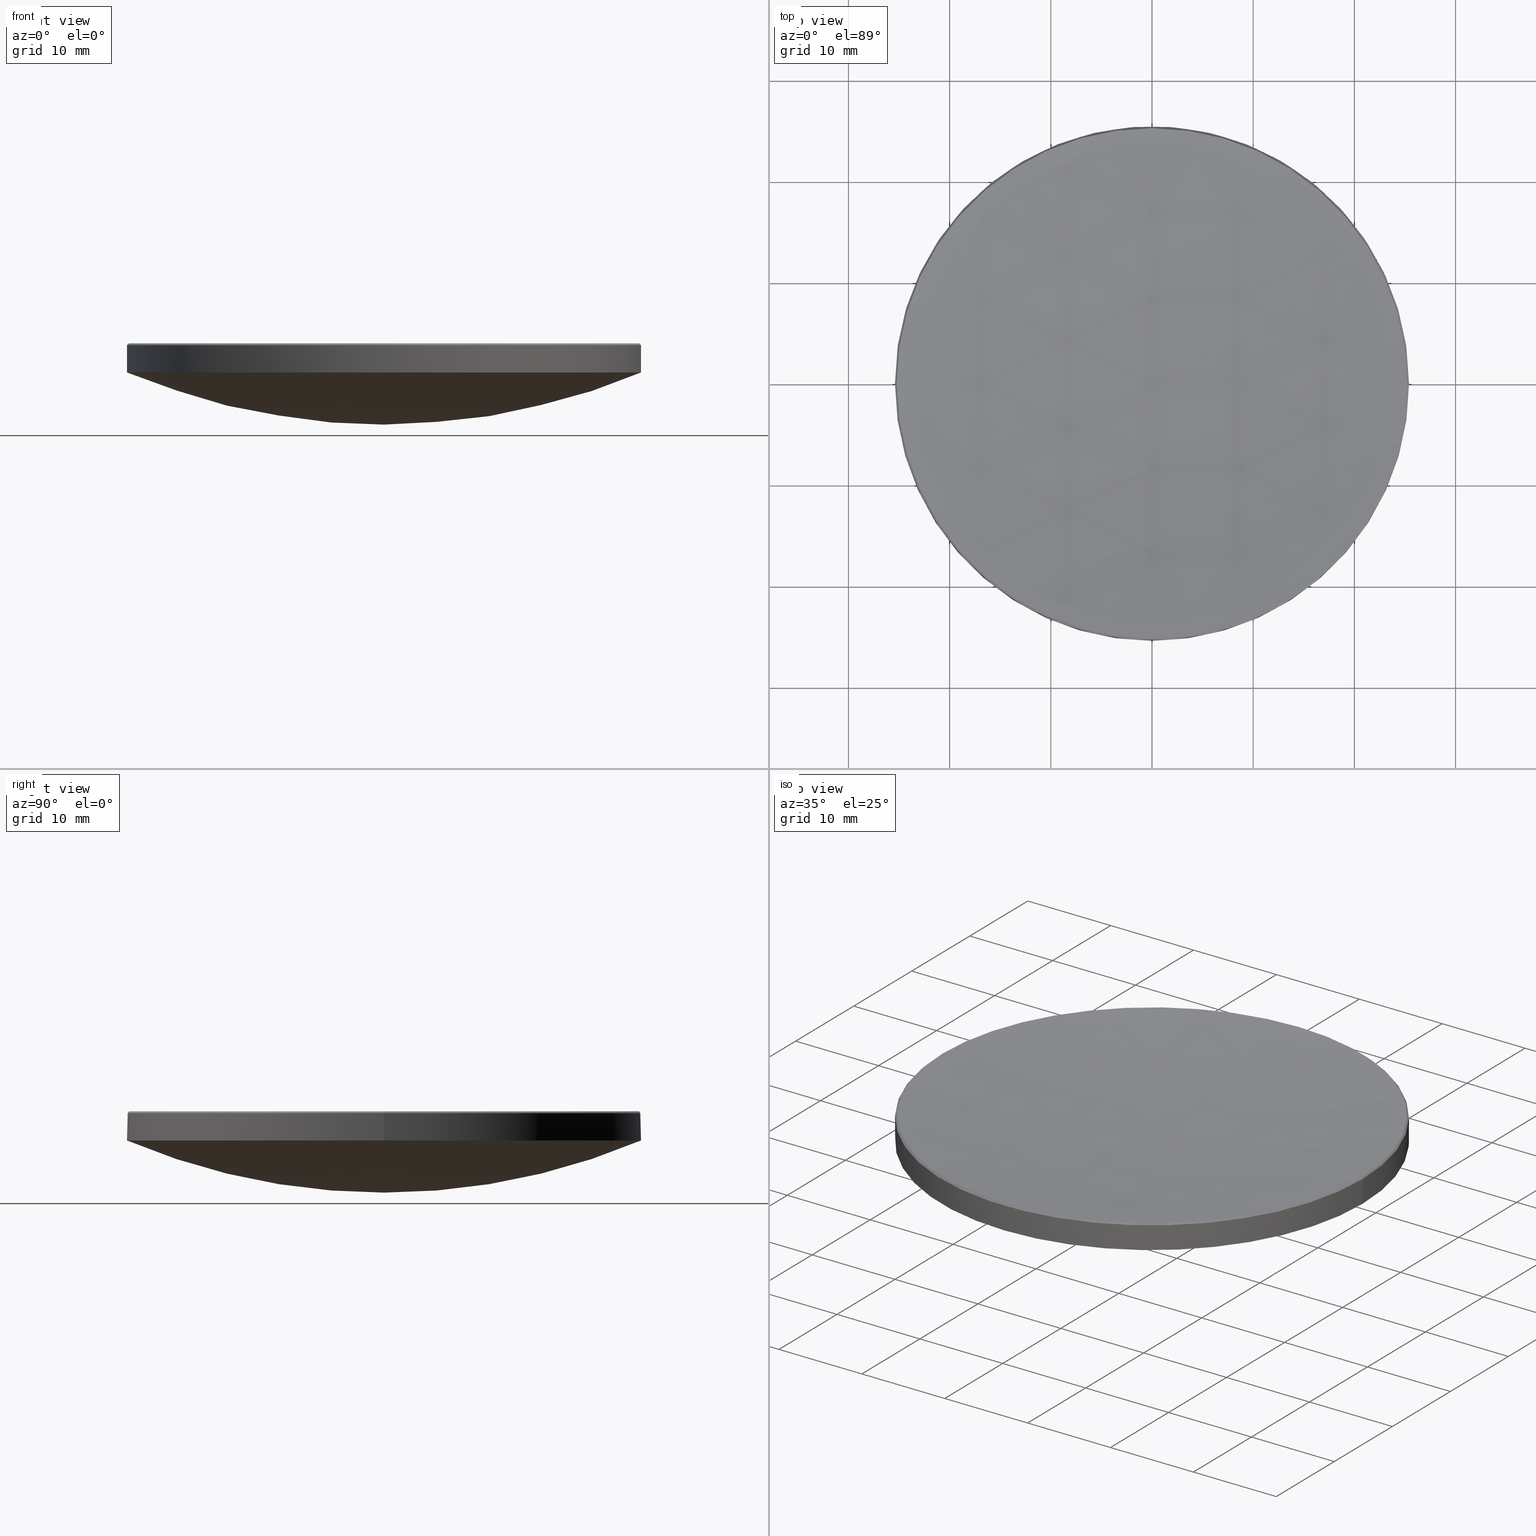
[diagram: canonical four-view strip — front | top / right | iso, engineering-drawing reading convention]
A machine part, canonical four-view strip (front | top / right | iso — engineering-drawing reading convention). The complete STEP part file that produces these views, byte-faithful:
ISO-10303-21;
HEADER;
FILE_DESCRIPTION (( 'STEP AP214' ),
    '1' );
FILE_NAME ('GLM1-050B-200-NIR.STEP',
    '2024-08-09T02:25:35',
    ( 'Windows User' ),
    ( 'P R C' ),
    'SwSTEP 2.0',
    'SolidWorks 2022',
    '' );
FILE_SCHEMA (( 'AUTOMOTIVE_DESIGN' ));
ENDSEC;

DATA;
#1 = AXIS2_PLACEMENT_3D ( 'NONE', #212, #15, #109 ) ;
#2 = PRESENTATION_STYLE_ASSIGNMENT (( #156 ) ) ;
#3 = ORIENTED_EDGE ( 'NONE', *, *, #253, .F. ) ;
#4 = EDGE_CURVE ( 'NONE', #224, #43, #279, .T. ) ;
#5 = ADVANCED_BREP_SHAPE_REPRESENTATION ( 'GLM1-050B-200-NIR', ( #196, #113 ), #13 ) ;
#6 = DIRECTION ( 'NONE',  ( 0.000000000000000000, 0.000000000000000000, -1.000000000000000000 ) ) ;
#7 = CARTESIAN_POINT ( 'NONE',  ( 0.000000000000000000, 0.000000000000000000, 13.00000000000000000 ) ) ;
#8 = CIRCLE ( 'NONE', #129, 25.22595727592940662 ) ;
#9 = CIRCLE ( 'NONE', #252, 65.15999999999999659 ) ;
#10 = CARTESIAN_POINT ( 'NONE',  ( -25.39999999999999858, 0.000000000000000000, 15.69999999999996376 ) ) ;
#11 = FACE_OUTER_BOUND ( 'NONE', #88, .T. ) ;
#12 = CARTESIAN_POINT ( 'NONE',  ( 0.000000000000000000, 0.000000000000000000, 73.00554641031111203 ) ) ;
#13 =( GEOMETRIC_REPRESENTATION_CONTEXT ( 3 ) GLOBAL_UNCERTAINTY_ASSIGNED_CONTEXT ( ( #244 ) ) GLOBAL_UNIT_ASSIGNED_CONTEXT ( ( #75, #27, #271 ) ) REPRESENTATION_CONTEXT ( 'NONE', 'WORKASPACE' ) );
#14 = ADVANCED_FACE ( 'NONE', ( #28 ), #31, .F. ) ;
#15 = DIRECTION ( 'NONE',  ( -1.000000000000000000, 0.000000000000000000, 0.000000000000000000 ) ) ;
#16 = CARTESIAN_POINT ( 'NONE',  ( 0.000000000000000000, 0.000000000000000000, 20.00000000000000000 ) ) ;
#17 = DIRECTION ( 'NONE',  ( -0.000000000000000000, -0.000000000000000000, -1.000000000000000000 ) ) ;
#18 = AXIS2_PLACEMENT_3D ( 'NONE', #79, #121, #162 ) ;
#19 = EDGE_LOOP ( 'NONE', ( #176, #23, #101, #240, #245 ) ) ;
#20 = ORIENTED_EDGE ( 'NONE', *, *, #186, .T. ) ;
#21 = VERTEX_POINT ( 'NONE', #166 ) ;
#22 = CARTESIAN_POINT ( 'NONE',  ( 25.22595727592941373, 3.089288783339484453E-15, 15.87404272407055927 ) ) ;
#23 = ORIENTED_EDGE ( 'NONE', *, *, #206, .F. ) ;
#24 = EDGE_CURVE ( 'NONE', #87, #40, #154, .T. ) ;
#25 = ORIENTED_EDGE ( 'NONE', *, *, #74, .F. ) ;
#26 =( LENGTH_UNIT ( ) NAMED_UNIT ( * ) SI_UNIT ( .MILLI., .METRE. ) );
#27 =( NAMED_UNIT ( * ) PLANE_ANGLE_UNIT ( ) SI_UNIT ( $, .RADIAN. ) );
#28 = FACE_OUTER_BOUND ( 'NONE', #152, .T. ) ;
#29 = CARTESIAN_POINT ( 'NONE',  ( 0.000000000000000000, 0.000000000000000000, 73.00554641031111203 ) ) ;
#30 = CIRCLE ( 'NONE', #137, 25.39999999999999858 ) ;
#31 = SPHERICAL_SURFACE ( 'NONE', #18, 171.5999999999999659 ) ;
#32 = DIRECTION ( 'NONE',  ( -0.000000000000000000, -0.000000000000000000, 1.000000000000000000 ) ) ;
#33 = PRODUCT_DEFINITION_CONTEXT ( 'detailed design', #273, 'design' ) ;
#34 = PRODUCT_RELATED_PRODUCT_CATEGORY ( 'part', '', ( #58 ) ) ;
#35 =( LENGTH_UNIT ( ) NAMED_UNIT ( * ) SI_UNIT ( .MILLI., .METRE. ) );
#36 = DIRECTION ( 'NONE',  ( -1.000000000000000000, 0.000000000000000000, 0.000000000000000000 ) ) ;
#37 = CONICAL_SURFACE ( 'NONE', #102, 25.22595727592941373, 0.7853981633974184140 ) ;
#38 =( GEOMETRIC_REPRESENTATION_CONTEXT ( 3 ) GLOBAL_UNCERTAINTY_ASSIGNED_CONTEXT ( ( #49 ) ) GLOBAL_UNIT_ASSIGNED_CONTEXT ( ( #35, #251, #230 ) ) REPRESENTATION_CONTEXT ( 'NONE', 'WORKASPACE' ) );
#39 = DIRECTION ( 'NONE',  ( -0.000000000000000000, -0.000000000000000000, -1.000000000000000000 ) ) ;
#40 = VERTEX_POINT ( 'NONE', #10 ) ;
#41 = DIRECTION ( 'NONE',  ( 1.000000000000000000, -0.000000000000000000, 0.000000000000000000 ) ) ;
#42 = CIRCLE ( 'NONE', #117, 171.5999999999999659 ) ;
#43 = VERTEX_POINT ( 'NONE', #105 ) ;
#44 = ORIENTED_EDGE ( 'NONE', *, *, #4, .F. ) ;
#45 =( NAMED_UNIT ( * ) SI_UNIT ( $, .STERADIAN. ) SOLID_ANGLE_UNIT ( ) );
#46 = VERTEX_POINT ( 'NONE', #80 ) ;
#47 = CIRCLE ( 'NONE', #85, 25.39999999999999503 ) ;
#48 = SURFACE_STYLE_FILL_AREA ( #99 ) ;
#49 = UNCERTAINTY_MEASURE_WITH_UNIT (LENGTH_MEASURE( 1.000000000000000082E-05 ), #35, 'distance_accuracy_value', 'NONE');
#50 = ORIENTED_EDGE ( 'NONE', *, *, #107, .F. ) ;
#51 = DIRECTION ( 'NONE',  ( 0.000000000000000000, 1.000000000000000000, 0.000000000000000000 ) ) ;
#52 = EDGE_CURVE ( 'NONE', #224, #281, #42, .T. ) ;
#53 = CIRCLE ( 'NONE', #72, 25.39999999999999503 ) ;
#54 = EDGE_CURVE ( 'NONE', #265, #217, #47, .T. ) ;
#55 = PRESENTATION_STYLE_ASSIGNMENT (( #208 ) ) ;
#56 = VECTOR ( 'NONE', #65, 1000.000000000000000 ) ;
#57 = DIRECTION ( 'NONE',  ( -0.000000000000000000, -0.000000000000000000, 1.000000000000000000 ) ) ;
#58 = PRODUCT ( 'GLM1-050B-200-NIR', 'GLM1-050B-200-NIR', '', ( #234 ) ) ;
#59 = CARTESIAN_POINT ( 'NONE',  ( 0.000000000000000000, 0.000000000000000000, 15.87404272407055927 ) ) ;
#60 = CYLINDRICAL_SURFACE ( 'NONE', #67, 25.39999999999999858 ) ;
#61 = CLOSED_SHELL ( 'NONE', ( #111, #14, #236, #179, #147, #63, #86, #203 ) ) ;
#62 = CARTESIAN_POINT ( 'NONE',  ( 0.000000000000000000, 0.000000000000000000, 15.87404272407055927 ) ) ;
#63 = ADVANCED_FACE ( 'NONE', ( #11 ), #84, .T. ) ;
#64 = ORIENTED_EDGE ( 'NONE', *, *, #74, .T. ) ;
#65 = DIRECTION ( 'NONE',  ( -0.7071067811865263675, 0.000000000000000000, -0.7071067811865686670 ) ) ;
#66 = FACE_OUTER_BOUND ( 'NONE', #19, .T. ) ;
#67 = AXIS2_PLACEMENT_3D ( 'NONE', #148, #39, #130 ) ;
#68 = ORIENTED_EDGE ( 'NONE', *, *, #100, .F. ) ;
#69 = CARTESIAN_POINT ( 'NONE',  ( 0.000000000000000000, 1.050746953668428865E-14, 14.00975222420192168 ) ) ;
#70 = VERTEX_POINT ( 'NONE', #258 ) ;
#71 = ORIENTED_EDGE ( 'NONE', *, *, #168, .F. ) ;
#72 = AXIS2_PLACEMENT_3D ( 'NONE', #151, #57, #145 ) ;
#73 = LINE ( 'NONE', #22, #269 ) ;
#74 = EDGE_CURVE ( 'NONE', #87, #265, #235, .T. ) ;
#75 =( LENGTH_UNIT ( ) NAMED_UNIT ( * ) SI_UNIT ( .MILLI., .METRE. ) );
#76 = CARTESIAN_POINT ( 'NONE',  ( 0.000000000000000000, 0.000000000000000000, 15.87404272407055927 ) ) ;
#77 = AXIS2_PLACEMENT_3D ( 'NONE', #76, #185, #142 ) ;
#78 = EDGE_CURVE ( 'NONE', #40, #87, #30, .T. ) ;
#79 = CARTESIAN_POINT ( 'NONE',  ( 0.000000000000000000, 0.000000000000000000, 185.6097522242018840 ) ) ;
#80 = CARTESIAN_POINT ( 'NONE',  ( 0.000000000000000000, 3.989899271622076049E-15, 7.845546410311113661 ) ) ;
#81 = CARTESIAN_POINT ( 'NONE',  ( -25.22595727592941373, 0.000000000000000000, 15.87404272407055927 ) ) ;
#82 = DIRECTION ( 'NONE',  ( 0.000000000000000000, 0.000000000000000000, 1.000000000000000000 ) ) ;
#83 = CYLINDRICAL_SURFACE ( 'NONE', #207, 25.39999999999999858 ) ;
#84 = SPHERICAL_SURFACE ( 'NONE', #1, 65.15999999999999659 ) ;
#85 = AXIS2_PLACEMENT_3D ( 'NONE', #187, #108, #274 ) ;
#86 = ADVANCED_FACE ( 'NONE', ( #170 ), #263, .F. ) ;
#87 = VERTEX_POINT ( 'NONE', #277 ) ;
#88 = EDGE_LOOP ( 'NONE', ( #157, #220, #123, #3 ) ) ;
#89 = ORIENTED_EDGE ( 'NONE', *, *, #249, .T. ) ;
#90 = CARTESIAN_POINT ( 'NONE',  ( 0.000000000000000000, 0.000000000000000000, 73.00554641031111203 ) ) ;
#91 = PRESENTATION_LAYER_ASSIGNMENT (  '', '', ( #178 ) ) ;
#92 = ORIENTED_EDGE ( 'NONE', *, *, #206, .T. ) ;
#93 = DIRECTION ( 'NONE',  ( 0.7071067811865263675, 8.659560562354675246E-17, -0.7071067811865686670 ) ) ;
#94 = PRODUCT_DEFINITION ( 'δ֪', '', #165, #33 ) ;
#95 = CARTESIAN_POINT ( 'NONE',  ( 0.000000000000000000, 0.000000000000000000, 185.6097522242018840 ) ) ;
#96 = AXIS2_PLACEMENT_3D ( 'NONE', #192, #261, #149 ) ;
#97 = SPHERICAL_SURFACE ( 'NONE', #272, 65.15999999999999659 ) ;
#98 = CARTESIAN_POINT ( 'NONE',  ( 0.000000000000000000, 0.000000000000000000, 15.69999999999996376 ) ) ;
#99 = FILL_AREA_STYLE ('',( #122 ) ) ;
#100 = EDGE_CURVE ( 'NONE', #40, #21, #191, .T. ) ;
#101 = ORIENTED_EDGE ( 'NONE', *, *, #249, .F. ) ;
#102 = AXIS2_PLACEMENT_3D ( 'NONE', #218, #120, #153 ) ;
#103 = PRESENTATION_LAYER_ASSIGNMENT (  '', '', ( #118 ) ) ;
#104 = DIRECTION ( 'NONE',  ( 1.000000000000000000, 0.000000000000000000, 0.000000000000000000 ) ) ;
#105 = CARTESIAN_POINT ( 'NONE',  ( -3.089288783339482875E-15, -25.22595727592939951, 15.87404272407055927 ) ) ;
#106 = DIRECTION ( 'NONE',  ( 1.000000000000000000, 0.000000000000000000, 0.000000000000000000 ) ) ;
#107 = EDGE_CURVE ( 'NONE', #281, #70, #169, .T. ) ;
#108 = DIRECTION ( 'NONE',  ( -0.000000000000000000, -0.000000000000000000, 1.000000000000000000 ) ) ;
#109 = DIRECTION ( 'NONE',  ( 0.000000000000000000, 1.000000000000000000, 0.000000000000000000 ) ) ;
#110 = FACE_OUTER_BOUND ( 'NONE', #159, .T. ) ;
#111 = ADVANCED_FACE ( 'NONE', ( #110 ), #200, .T. ) ;
#112 = AXIS2_PLACEMENT_3D ( 'NONE', #259, #188, #146 ) ;
#113 = AXIS2_PLACEMENT_3D ( 'NONE', #167, #82, #275 ) ;
#114 = ORIENTED_EDGE ( 'NONE', *, *, #52, .T. ) ;
#115 = VERTEX_POINT ( 'NONE', #126 ) ;
#116 = FILL_AREA_STYLE ('',( #266 ) ) ;
#117 = AXIS2_PLACEMENT_3D ( 'NONE', #232, #104, #211 ) ;
#118 = STYLED_ITEM ( 'NONE', ( #55 ), #5 ) ;
#119 = APPLICATION_CONTEXT ( 'automotive_design' ) ;
#120 = DIRECTION ( 'NONE',  ( 0.000000000000000000, 0.000000000000000000, -1.000000000000000000 ) ) ;
#121 = DIRECTION ( 'NONE',  ( -1.000000000000000000, 0.000000000000000000, 0.000000000000000000 ) ) ;
#122 = FILL_AREA_STYLE_COLOUR ( '', #223 ) ;
#123 = ORIENTED_EDGE ( 'NONE', *, *, #54, .F. ) ;
#124 = COLOUR_RGB ( '',1.000000000000000000, 1.000000000000000000, 1.000000000000000000 ) ;
#125 = MECHANICAL_DESIGN_GEOMETRIC_PRESENTATION_REPRESENTATION (  '', ( #118 ), #38 ) ;
#126 = CARTESIAN_POINT ( 'NONE',  ( -3.110602869834275682E-15, -25.39999999999998437, 12.99999999999999822 ) ) ;
#127 = AXIS2_PLACEMENT_3D ( 'NONE', #90, #160, #177 ) ;
#128 = DIRECTION ( 'NONE',  ( -0.000000000000000000, -0.000000000000000000, -1.000000000000000000 ) ) ;
#129 = AXIS2_PLACEMENT_3D ( 'NONE', #135, #268, #242 ) ;
#130 = DIRECTION ( 'NONE',  ( -1.000000000000000000, 0.000000000000000000, 0.000000000000000000 ) ) ;
#131 = CARTESIAN_POINT ( 'NONE',  ( 0.000000000000000000, 0.000000000000000000, 185.6097522242018840 ) ) ;
#132 = ORIENTED_EDGE ( 'NONE', *, *, #54, .T. ) ;
#133 = AXIS2_PLACEMENT_3D ( 'NONE', #95, #227, #164 ) ;
#134 = EDGE_LOOP ( 'NONE', ( #25, #180, #150, #20, #238 ) ) ;
#135 = CARTESIAN_POINT ( 'NONE',  ( 0.000000000000000000, 0.000000000000000000, 15.87404272407055927 ) ) ;
#136 = ORIENTED_EDGE ( 'NONE', *, *, #186, .F. ) ;
#137 = AXIS2_PLACEMENT_3D ( 'NONE', #237, #239, #190 ) ;
#138 = ORIENTED_EDGE ( 'NONE', *, *, #175, .T. ) ;
#139 = EDGE_CURVE ( 'NONE', #173, #281, #161, .T. ) ;
#140 = DIRECTION ( 'NONE',  ( -1.000000000000000000, 0.000000000000000000, 0.000000000000000000 ) ) ;
#141 = ORIENTED_EDGE ( 'NONE', *, *, #107, .T. ) ;
#142 = DIRECTION ( 'NONE',  ( 1.000000000000000000, 0.000000000000000000, 0.000000000000000000 ) ) ;
#143 = CIRCLE ( 'NONE', #228, 25.39999999999999503 ) ;
#144 = APPLICATION_PROTOCOL_DEFINITION ( 'draft international standard', 'automotive_design', 1998, #119 ) ;
#145 = DIRECTION ( 'NONE',  ( 1.000000000000000000, 0.000000000000000000, 0.000000000000000000 ) ) ;
#146 = DIRECTION ( 'NONE',  ( 1.000000000000000000, 0.000000000000000000, 0.000000000000000000 ) ) ;
#147 = ADVANCED_FACE ( 'NONE', ( #280 ), #83, .T. ) ;
#148 = CARTESIAN_POINT ( 'NONE',  ( 0.000000000000000000, 0.000000000000000000, 20.00000000000000000 ) ) ;
#149 = DIRECTION ( 'NONE',  ( 1.000000000000000000, 0.000000000000000000, 0.000000000000000000 ) ) ;
#150 = ORIENTED_EDGE ( 'NONE', *, *, #100, .T. ) ;
#151 = CARTESIAN_POINT ( 'NONE',  ( 0.000000000000000000, 0.000000000000000000, 13.00000000000000000 ) ) ;
#152 = EDGE_LOOP ( 'NONE', ( #197, #201, #92, #155 ) ) ;
#153 = DIRECTION ( 'NONE',  ( -1.000000000000000000, 0.000000000000000000, 0.000000000000000000 ) ) ;
#154 = CIRCLE ( 'NONE', #222, 25.39999999999999858 ) ;
#155 = ORIENTED_EDGE ( 'NONE', *, *, #139, .T. ) ;
#156 = SURFACE_STYLE_USAGE ( .BOTH. , #183 ) ;
#157 = ORIENTED_EDGE ( 'NONE', *, *, #199, .F. ) ;
#158 = EDGE_CURVE ( 'NONE', #46, #217, #9, .T. ) ;
#159 = EDGE_LOOP ( 'NONE', ( #219, #221, #264, #71, #50 ) ) ;
#160 = DIRECTION ( 'NONE',  ( -1.000000000000000000, 1.224646799147353207E-16, 0.000000000000000000 ) ) ;
#161 = CIRCLE ( 'NONE', #112, 25.22595727592940662 ) ;
#162 = DIRECTION ( 'NONE',  ( 0.000000000000000000, 1.000000000000000000, 0.000000000000000000 ) ) ;
#163 = FACE_OUTER_BOUND ( 'NONE', #243, .T. ) ;
#164 = DIRECTION ( 'NONE',  ( -1.224646799147353207E-16, -1.000000000000000000, 0.000000000000000000 ) ) ;
#165 = PRODUCT_DEFINITION_FORMATION_WITH_SPECIFIED_SOURCE ( '�κ�', '', #58, .NOT_KNOWN. ) ;
#166 = CARTESIAN_POINT ( 'NONE',  ( -25.39999999999999503, 0.000000000000000000, 13.00000000000000000 ) ) ;
#167 = CARTESIAN_POINT ( 'NONE',  ( 0.000000000000000000, 0.000000000000000000, 0.000000000000000000 ) ) ;
#168 = EDGE_CURVE ( 'NONE', #70, #40, #171, .T. ) ;
#169 = CIRCLE ( 'NONE', #248, 25.22595727592940662 ) ;
#170 = FACE_OUTER_BOUND ( 'NONE', #267, .T. ) ;
#171 = LINE ( 'NONE', #81, #56 ) ;
#172 = DIRECTION ( 'NONE',  ( 0.000000000000000000, 0.000000000000000000, -1.000000000000000000 ) ) ;
#173 = VERTEX_POINT ( 'NONE', #214 ) ;
#174 = DIRECTION ( 'NONE',  ( -1.000000000000000000, 0.000000000000000000, 0.000000000000000000 ) ) ;
#175 = EDGE_CURVE ( 'NONE', #217, #21, #53, .T. ) ;
#176 = ORIENTED_EDGE ( 'NONE', *, *, #229, .F. ) ;
#177 = DIRECTION ( 'NONE',  ( -1.224646799147352961E-16, -1.000000000000000000, 0.000000000000000000 ) ) ;
#178 = STYLED_ITEM ( 'NONE', ( #2 ), #196 ) ;
#179 = ADVANCED_FACE ( 'NONE', ( #278 ), #60, .T. ) ;
#180 = ORIENTED_EDGE ( 'NONE', *, *, #24, .T. ) ;
#181 = UNCERTAINTY_MEASURE_WITH_UNIT (LENGTH_MEASURE( 1.000000000000000082E-05 ), #26, 'distance_accuracy_value', 'NONE');
#182 = DIRECTION ( 'NONE',  ( 1.000000000000000000, 0.000000000000000000, 0.000000000000000000 ) ) ;
#183 = SURFACE_SIDE_STYLE ('',( #225 ) ) ;
#184 = VECTOR ( 'NONE', #215, 1000.000000000000000 ) ;
#185 = DIRECTION ( 'NONE',  ( -0.000000000000000000, -0.000000000000000000, 1.000000000000000000 ) ) ;
#186 = EDGE_CURVE ( 'NONE', #21, #115, #241, .T. ) ;
#187 = CARTESIAN_POINT ( 'NONE',  ( 0.000000000000000000, 0.000000000000000000, 13.00000000000000000 ) ) ;
#188 = DIRECTION ( 'NONE',  ( -0.000000000000000000, -0.000000000000000000, 1.000000000000000000 ) ) ;
#189 = MECHANICAL_DESIGN_GEOMETRIC_PRESENTATION_REPRESENTATION (  '', ( #178 ), #202 ) ;
#190 = DIRECTION ( 'NONE',  ( 1.000000000000000000, 0.000000000000000000, 0.000000000000000000 ) ) ;
#191 = LINE ( 'NONE', #233, #213 ) ;
#192 = CARTESIAN_POINT ( 'NONE',  ( 0.000000000000000000, 0.000000000000000000, 13.00000000000000000 ) ) ;
#193 = AXIS2_PLACEMENT_3D ( 'NONE', #131, #276, #216 ) ;
#194 = CARTESIAN_POINT ( 'NONE',  ( 25.39999999999999858, 3.110602869834276865E-15, 20.00000000000000000 ) ) ;
#195 = ORIENTED_EDGE ( 'NONE', *, *, #199, .T. ) ;
#196 = MANIFOLD_SOLID_BREP ( '����1', #61 ) ;
#197 = ORIENTED_EDGE ( 'NONE', *, *, #52, .F. ) ;
#198 = ORIENTED_EDGE ( 'NONE', *, *, #158, .F. ) ;
#199 = EDGE_CURVE ( 'NONE', #46, #115, #256, .T. ) ;
#200 = CONICAL_SURFACE ( 'NONE', #254, 25.22595727592941373, 0.7853981633974184140 ) ;
#201 = ORIENTED_EDGE ( 'NONE', *, *, #4, .T. ) ;
#202 =( GEOMETRIC_REPRESENTATION_CONTEXT ( 3 ) GLOBAL_UNCERTAINTY_ASSIGNED_CONTEXT ( ( #181 ) ) GLOBAL_UNIT_ASSIGNED_CONTEXT ( ( #26, #247, #45 ) ) REPRESENTATION_CONTEXT ( 'NONE', 'WORKASPACE' ) );
#203 = ADVANCED_FACE ( 'NONE', ( #66 ), #37, .T. ) ;
#204 = DIRECTION ( 'NONE',  ( 1.000000000000000000, 0.000000000000000000, 0.000000000000000000 ) ) ;
#205 = PRODUCT_DEFINITION_SHAPE ( 'NONE', 'NONE',  #94 ) ;
#206 = EDGE_CURVE ( 'NONE', #43, #173, #8, .T. ) ;
#207 = AXIS2_PLACEMENT_3D ( 'NONE', #16, #128, #174 ) ;
#208 = SURFACE_STYLE_USAGE ( .BOTH. , #255 ) ;
#209 = SHAPE_DEFINITION_REPRESENTATION ( #205, #5 ) ;
#210 = DIRECTION ( 'NONE',  ( -0.000000000000000000, -0.000000000000000000, 1.000000000000000000 ) ) ;
#211 = DIRECTION ( 'NONE',  ( 0.000000000000000000, 0.000000000000000000, -1.000000000000000000 ) ) ;
#212 = CARTESIAN_POINT ( 'NONE',  ( 0.000000000000000000, 0.000000000000000000, 73.00554641031111203 ) ) ;
#213 = VECTOR ( 'NONE', #17, 1000.000000000000000 ) ;
#214 = CARTESIAN_POINT ( 'NONE',  ( 25.22595727592940662, 3.099945826586880264E-15, 15.87404272407055927 ) ) ;
#215 = DIRECTION ( 'NONE',  ( -0.000000000000000000, -0.000000000000000000, -1.000000000000000000 ) ) ;
#216 = DIRECTION ( 'NONE',  ( 0.000000000000000000, 1.000000000000000000, 0.000000000000000000 ) ) ;
#217 = VERTEX_POINT ( 'NONE', #250 ) ;
#218 = CARTESIAN_POINT ( 'NONE',  ( 0.000000000000000000, 0.000000000000000000, 15.87404272407055927 ) ) ;
#219 = ORIENTED_EDGE ( 'NONE', *, *, #139, .F. ) ;
#220 = ORIENTED_EDGE ( 'NONE', *, *, #158, .T. ) ;
#221 = ORIENTED_EDGE ( 'NONE', *, *, #229, .T. ) ;
#222 = AXIS2_PLACEMENT_3D ( 'NONE', #98, #6, #182 ) ;
#223 = COLOUR_RGB ( '',1.000000000000000000, 1.000000000000000000, 1.000000000000000000 ) ;
#224 = VERTEX_POINT ( 'NONE', #69 ) ;
#225 = SURFACE_STYLE_FILL_AREA ( #116 ) ;
#226 = CARTESIAN_POINT ( 'NONE',  ( 25.39999999999999503, 3.110602869834276471E-15, 13.00000000000000000 ) ) ;
#227 = DIRECTION ( 'NONE',  ( -1.000000000000000000, 1.224646799147353207E-16, 0.000000000000000000 ) ) ;
#228 = AXIS2_PLACEMENT_3D ( 'NONE', #7, #32, #204 ) ;
#229 = EDGE_CURVE ( 'NONE', #173, #87, #73, .T. ) ;
#230 =( NAMED_UNIT ( * ) SI_UNIT ( $, .STERADIAN. ) SOLID_ANGLE_UNIT ( ) );
#231 = APPLICATION_PROTOCOL_DEFINITION ( 'draft international standard', 'automotive_design', 1998, #273 ) ;
#232 = CARTESIAN_POINT ( 'NONE',  ( 0.000000000000000000, 0.000000000000000000, 185.6097522242018840 ) ) ;
#233 = CARTESIAN_POINT ( 'NONE',  ( -25.39999999999999858, 0.000000000000000000, 20.00000000000000000 ) ) ;
#234 = PRODUCT_CONTEXT ( 'NONE', #119, 'mechanical' ) ;
#235 = LINE ( 'NONE', #194, #184 ) ;
#236 = ADVANCED_FACE ( 'NONE', ( #163 ), #97, .T. ) ;
#237 = CARTESIAN_POINT ( 'NONE',  ( 0.000000000000000000, 0.000000000000000000, 15.69999999999996376 ) ) ;
#238 = ORIENTED_EDGE ( 'NONE', *, *, #253, .T. ) ;
#239 = DIRECTION ( 'NONE',  ( 0.000000000000000000, 0.000000000000000000, -1.000000000000000000 ) ) ;
#240 = ORIENTED_EDGE ( 'NONE', *, *, #168, .T. ) ;
#241 = CIRCLE ( 'NONE', #96, 25.39999999999999503 ) ;
#242 = DIRECTION ( 'NONE',  ( 1.000000000000000000, 0.000000000000000000, 0.000000000000000000 ) ) ;
#243 = EDGE_LOOP ( 'NONE', ( #198, #195, #136, #262 ) ) ;
#244 = UNCERTAINTY_MEASURE_WITH_UNIT (LENGTH_MEASURE( 1.000000000000000082E-05 ), #75, 'distance_accuracy_value', 'NONE');
#245 = ORIENTED_EDGE ( 'NONE', *, *, #24, .F. ) ;
#246 = ORIENTED_EDGE ( 'NONE', *, *, #78, .T. ) ;
#247 =( NAMED_UNIT ( * ) PLANE_ANGLE_UNIT ( ) SI_UNIT ( $, .RADIAN. ) );
#248 = AXIS2_PLACEMENT_3D ( 'NONE', #59, #210, #106 ) ;
#249 = EDGE_CURVE ( 'NONE', #70, #43, #260, .T. ) ;
#250 = CARTESIAN_POINT ( 'NONE',  ( 0.000000000000000000, 25.39999999999998437, 12.99999999999999822 ) ) ;
#251 =( NAMED_UNIT ( * ) PLANE_ANGLE_UNIT ( ) SI_UNIT ( $, .RADIAN. ) );
#252 = AXIS2_PLACEMENT_3D ( 'NONE', #12, #41, #257 ) ;
#253 = EDGE_CURVE ( 'NONE', #115, #265, #143, .T. ) ;
#254 = AXIS2_PLACEMENT_3D ( 'NONE', #62, #172, #36 ) ;
#255 = SURFACE_SIDE_STYLE ('',( #48 ) ) ;
#256 = CIRCLE ( 'NONE', #127, 65.15999999999999659 ) ;
#257 = DIRECTION ( 'NONE',  ( 0.000000000000000000, 0.000000000000000000, -1.000000000000000000 ) ) ;
#258 = CARTESIAN_POINT ( 'NONE',  ( -25.22595727592940662, 0.000000000000000000, 15.87404272407055927 ) ) ;
#259 = CARTESIAN_POINT ( 'NONE',  ( 0.000000000000000000, 0.000000000000000000, 15.87404272407055927 ) ) ;
#260 = CIRCLE ( 'NONE', #77, 25.22595727592940662 ) ;
#261 = DIRECTION ( 'NONE',  ( -0.000000000000000000, -0.000000000000000000, 1.000000000000000000 ) ) ;
#262 = ORIENTED_EDGE ( 'NONE', *, *, #175, .F. ) ;
#263 = SPHERICAL_SURFACE ( 'NONE', #193, 171.5999999999999659 ) ;
#264 = ORIENTED_EDGE ( 'NONE', *, *, #78, .F. ) ;
#265 = VERTEX_POINT ( 'NONE', #226 ) ;
#266 = FILL_AREA_STYLE_COLOUR ( '', #124 ) ;
#267 = EDGE_LOOP ( 'NONE', ( #44, #114, #141, #89 ) ) ;
#268 = DIRECTION ( 'NONE',  ( -0.000000000000000000, -0.000000000000000000, 1.000000000000000000 ) ) ;
#269 = VECTOR ( 'NONE', #93, 1000.000000000000000 ) ;
#270 = CARTESIAN_POINT ( 'NONE',  ( 0.000000000000000000, 25.22595727592939951, 15.87404272407055927 ) ) ;
#271 =( NAMED_UNIT ( * ) SI_UNIT ( $, .STERADIAN. ) SOLID_ANGLE_UNIT ( ) );
#272 = AXIS2_PLACEMENT_3D ( 'NONE', #29, #140, #51 ) ;
#273 = APPLICATION_CONTEXT ( 'automotive_design' ) ;
#274 = DIRECTION ( 'NONE',  ( 1.000000000000000000, 0.000000000000000000, 0.000000000000000000 ) ) ;
#275 = DIRECTION ( 'NONE',  ( 1.000000000000000000, 0.000000000000000000, 0.000000000000000000 ) ) ;
#276 = DIRECTION ( 'NONE',  ( -1.000000000000000000, 0.000000000000000000, 0.000000000000000000 ) ) ;
#277 = CARTESIAN_POINT ( 'NONE',  ( 25.39999999999999858, 3.110602869834276865E-15, 15.69999999999996376 ) ) ;
#278 = FACE_OUTER_BOUND ( 'NONE', #282, .T. ) ;
#279 = CIRCLE ( 'NONE', #133, 171.5999999999999659 ) ;
#280 = FACE_OUTER_BOUND ( 'NONE', #134, .T. ) ;
#281 = VERTEX_POINT ( 'NONE', #270 ) ;
#282 = EDGE_LOOP ( 'NONE', ( #246, #64, #132, #138, #68 ) ) ;
ENDSEC;
END-ISO-10303-21;
